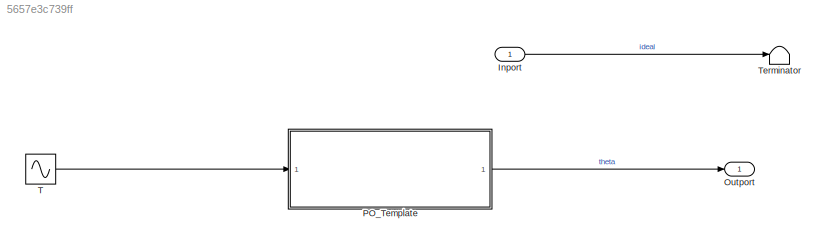
MODEL slx_5657e3c739ff
KIND model
CONFIG AbsTol = auto
CONFIG EnableMultiTasking = off
CONFIG FixedStep = auto
CONFIG MaxStep = 0.01
CONFIG MinStep = auto
CONFIG RelTol = 1e-3
CONFIG SampleTimeConstraint = Unconstrained
CONFIG SolverName = VariableStepAuto
CONFIG StartTime = 0.0
CONFIG StopTime = 10
WORKSPACE source: mxarray member
WORKSPACE I0 = 0.088
WORKSPACE L = 0.43
WORKSPACE g = 9.81
WORKSPACE m = 1
BLOCK [Inport] Inport
BLOCK [Outport] Outport
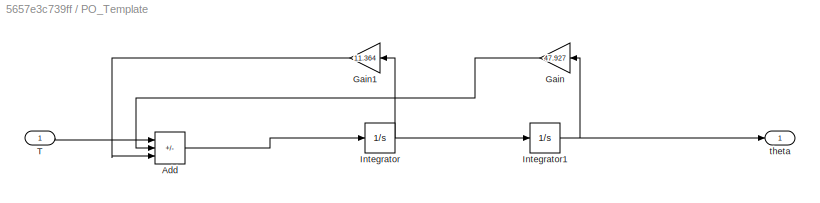
BLOCK [SubSystem] PO_Template
BLOCK [Sum] PO_Template/Add
  IconShape = rectangular
  Inputs = ++-
BLOCK [Gain] PO_Template/Gain
  Gain = 47.927
  NameLocation = top
BLOCK [Gain] PO_Template/Gain1
  Gain = 11.364
  NameLocation = top
BLOCK [Integrator] PO_Template/Integrator
BLOCK [Integrator] PO_Template/Integrator1
BLOCK [Inport] PO_Template/T
BLOCK [Outport] PO_Template/theta
BLOCK [Sin] T
  SampleTime = 0
BLOCK [Terminator] Terminator
LINE Inport:1 -> Terminator:1
LINE PO_Template/Add:1 -> PO_Template/Integrator:1
LINE PO_Template/Gain1:1 -> PO_Template/Add:3
LINE PO_Template/Gain:1 -> PO_Template/Add:2
NET PO_Template/Integrator1:1 -> PO_Template/Gain:1, PO_Template/theta:1
NET PO_Template/Integrator:1 -> PO_Template/Gain1:1, PO_Template/Integrator1:1
LINE PO_Template/T:1 -> PO_Template/Add:1
LINE PO_Template:1 -> Outport:1
LINE T:1 -> PO_Template:1
note: NET lines group one-source signal fan-out (src -> all destinations, sorted); 1:1 wires keep LINE
